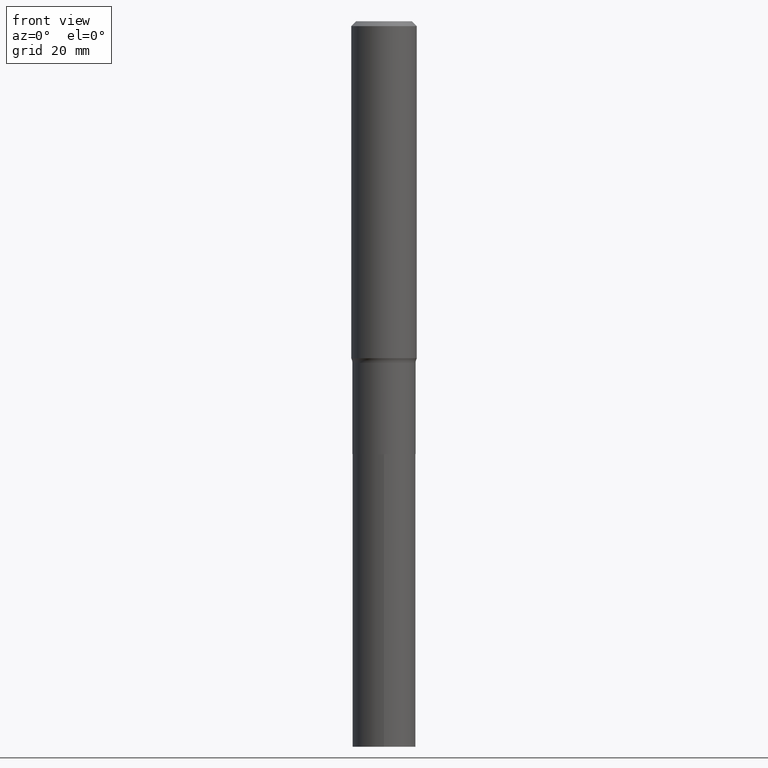
[diagram: clean part render]
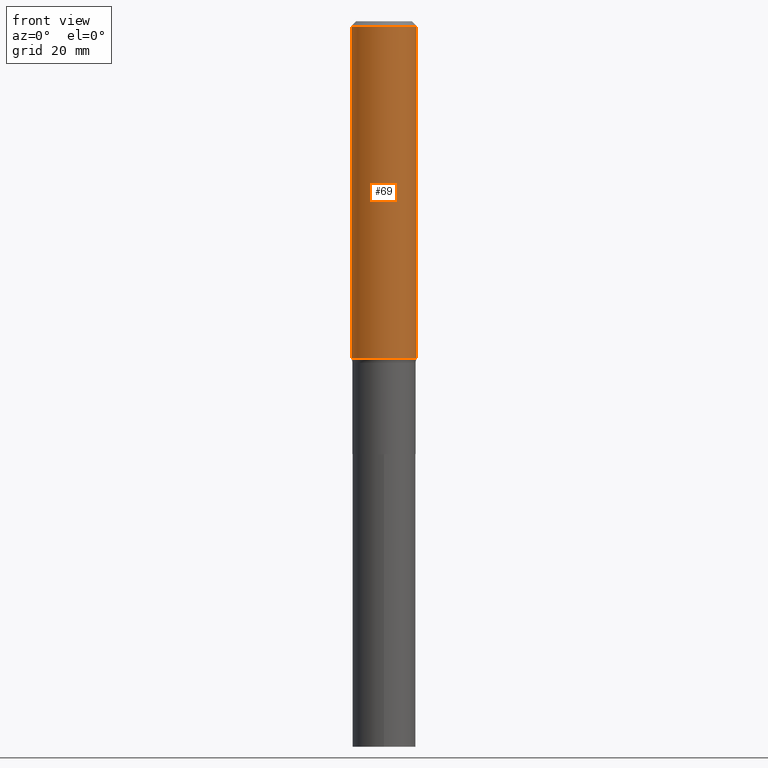
[diagram: same view with one face highlighted and labeled with its STEP entity id]
A machine part, front view. The second image highlights one B-rep face of the part: STEP entity #69.
In plain terms, the highlighted cylindrical surface (edge-blend (fillet) strip) has radius 7.0002 mm, axis along (-0, 0, 1).
Its self-contained STEP definition (entity closure, byte-faithful):
#32 = CIRCLE ( 'NONE', #133, 0.2756000000000003447 ) ;
#46 = DIRECTION ( 'NONE',  ( 1.000000000000000000, -6.982962677686267499E-15, 4.876176775795935793E-29 ) ) ;
#49 = DIRECTION ( 'NONE',  ( -2.445468806185136597E-29, 3.491481338843145583E-15, 1.000000000000000000 ) ) ;
#69 = ADVANCED_FACE ( 'NONE', ( #74 ), #262, .T. ) ;
#74 = FACE_OUTER_BOUND ( 'NONE', #334, .T. ) ;
#107 = ORIENTED_EDGE ( 'NONE', *, *, #174, .F. ) ;
#123 = ORIENTED_EDGE ( 'NONE', *, *, #343, .T. ) ;
#133 = AXIS2_PLACEMENT_3D ( 'NONE', #347, #49, #448 ) ;
#139 = ORIENTED_EDGE ( 'NONE', *, *, #349, .F. ) ;
#174 = EDGE_CURVE ( 'NONE', #421, #282, #310, .T. ) ;
#199 = CARTESIAN_POINT ( 'NONE',  ( 0.2756000000000001782, -1.924504513970336532E-15, 1.343874319409360828E-29 ) ) ;
#208 = ORIENTED_EDGE ( 'NONE', *, *, #276, .T. ) ;
#226 = CARTESIAN_POINT ( 'NONE',  ( 0.000000000000000000, 0.000000000000000000, 0.000000000000000000 ) ) ;
#262 = CYLINDRICAL_SURFACE ( 'NONE', #432, 0.2756000000000001782 ) ;
#266 = DIRECTION ( 'NONE',  ( 1.000000000000000000, -6.982962677686267499E-15, 0.000000000000000000 ) ) ;
#269 = CARTESIAN_POINT ( 'NONE',  ( 0.2756000000000004002, -1.182274994661454730E-14, -2.834970166537924996 ) ) ;
#276 = EDGE_CURVE ( 'NONE', #421, #467, #32, .T. ) ;
#280 = DIRECTION ( 'NONE',  ( -2.445468806185136877E-29, 3.491481338843145188E-15, 1.000000000000000000 ) ) ;
#282 = VERTEX_POINT ( 'NONE', #416 ) ;
#283 = VECTOR ( 'NONE', #280, 39.37007874015748143 ) ;
#310 = LINE ( 'NONE', #453, #283 ) ;
#313 = VECTOR ( 'NONE', #344, 39.37007874015748143 ) ;
#334 = EDGE_LOOP ( 'NONE', ( #107, #208, #123, #139 ) ) ;
#337 = VERTEX_POINT ( 'NONE', #439 ) ;
#339 = LINE ( 'NONE', #199, #313 ) ;
#343 = EDGE_CURVE ( 'NONE', #467, #337, #339, .T. ) ;
#344 = DIRECTION ( 'NONE',  ( -2.445468806185136877E-29, 3.491481338843145188E-15, 1.000000000000000000 ) ) ;
#347 = CARTESIAN_POINT ( 'NONE',  ( 6.932831108733975921E-29, -9.898245432644209192E-15, -2.834970166537924996 ) ) ;
#349 = EDGE_CURVE ( 'NONE', #282, #337, #373, .T. ) ;
#368 = CARTESIAN_POINT ( 'NONE',  ( -0.2756000000000004002, -7.939989652889369447E-15, -2.834970166537924996 ) ) ;
#373 = CIRCLE ( 'NONE', #454, 0.2756000000000000116 ) ;
#408 = CARTESIAN_POINT ( 'NONE',  ( 1.010956804476941872E-30, -1.443378385477765316E-16, -0.04134000000000025848 ) ) ;
#416 = CARTESIAN_POINT ( 'NONE',  ( -0.2756000000000000116, -3.063035855841154621E-15, -0.04134000000000025848 ) ) ;
#421 = VERTEX_POINT ( 'NONE', #368 ) ;
#432 = AXIS2_PLACEMENT_3D ( 'NONE', #226, #435, #46 ) ;
#435 = DIRECTION ( 'NONE',  ( -2.445468806185136597E-29, 3.491481338843145583E-15, 1.000000000000000000 ) ) ;
#439 = CARTESIAN_POINT ( 'NONE',  ( 0.2756000000000000116, -2.068842352518111732E-15, -0.04134000000000025848 ) ) ;
#442 = DIRECTION ( 'NONE',  ( -2.445468806185136597E-29, 3.491481338843145583E-15, 1.000000000000000000 ) ) ;
#448 = DIRECTION ( 'NONE',  ( 1.000000000000000000, -6.982962677686264344E-15, 0.000000000000000000 ) ) ;
#453 = CARTESIAN_POINT ( 'NONE',  ( -0.2756000000000001782, 1.958255779754837378E-15, -1.355658510874252848E-29 ) ) ;
#454 = AXIS2_PLACEMENT_3D ( 'NONE', #408, #442, #266 ) ;
#467 = VERTEX_POINT ( 'NONE', #269 ) ;